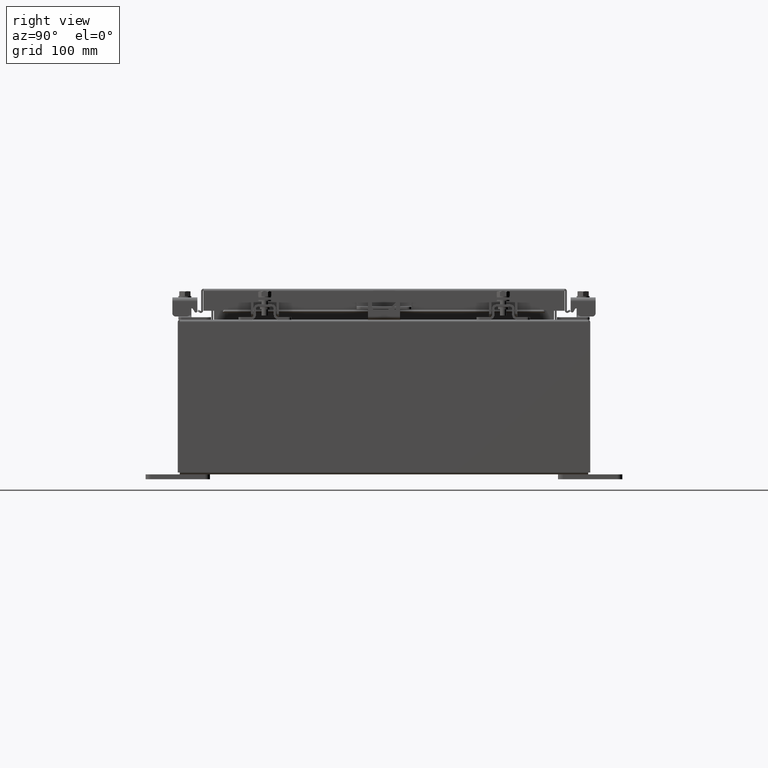
[diagram: clean part render]
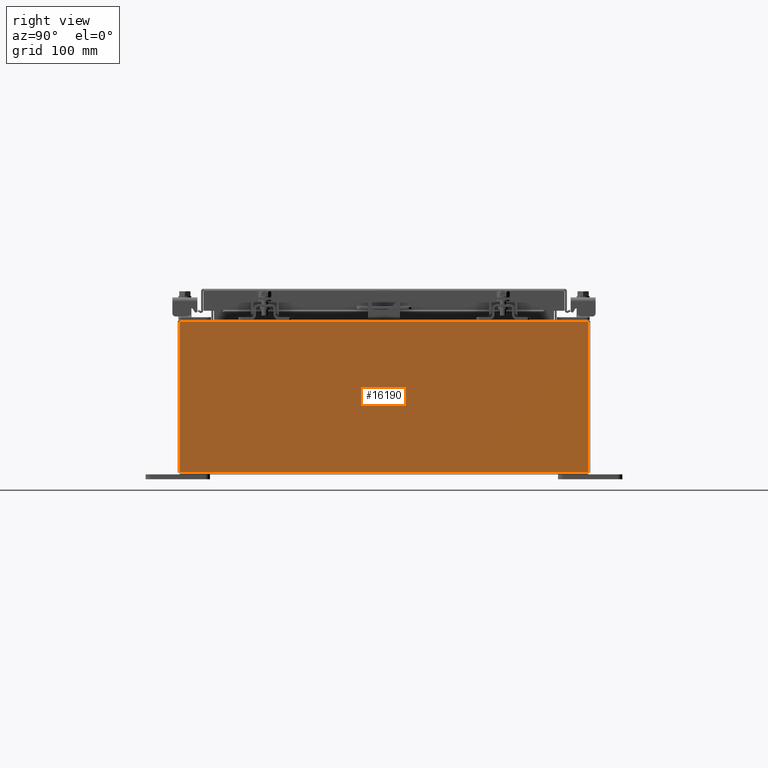
[diagram: same view with one face highlighted and labeled with its STEP entity id]
A machine part, right view. The second image highlights one B-rep face of the part: STEP entity #16190.
In plain terms, the highlighted planar face has unit normal (-1, 0, 0).
Its self-contained STEP definition (entity closure, byte-faithful):
#363 = AXIS2_PLACEMENT_3D ( 'NONE', #3461, #7522, #21646 ) ;
#975 = EDGE_CURVE ( 'NONE', #7709, #18837, #6839, .T. ) ;
#1475 = VECTOR ( 'NONE', #21698, 39.37007874015748100 ) ;
#3461 = CARTESIAN_POINT ( 'NONE',  ( 10.00000000000000000, 0.0000000000000000000, -3.345627304943080600E-014 ) ) ;
#4670 = DIRECTION ( 'NONE',  ( -3.319545939341922800E-015, 0.0000000000000000000, -1.000000000000000000 ) ) ;
#5377 = CARTESIAN_POINT ( 'NONE',  ( 10.00000000000002000, -7.925300000000000000, 5.837600000000001000 ) ) ;
#6839 = LINE ( 'NONE', #13391, #1475 ) ;
#7522 = DIRECTION ( 'NONE',  ( -1.000000000000000000, 0.0000000000000000000, 3.319545939341922000E-015 ) ) ;
#7592 = VECTOR ( 'NONE', #4670, 39.37007874015748100 ) ;
#7709 = VERTEX_POINT ( 'NONE', #18292 ) ;
#8293 = CARTESIAN_POINT ( 'NONE',  ( 10.00000000000000000, -7.925300000000000000, 0.01299999999999986400 ) ) ;
#8320 = DIRECTION ( 'NONE',  ( -0.0000000000000000000, -1.000000000000000000, -0.0000000000000000000 ) ) ;
#9433 = PLANE ( 'NONE',  #363 ) ;
#9997 = VECTOR ( 'NONE', #8320, 39.37007874015748100 ) ;
#10050 = CARTESIAN_POINT ( 'NONE',  ( 10.00000000000000000, -7.925300000000000000, 0.01299999999999985900 ) ) ;
#11296 = FACE_OUTER_BOUND ( 'NONE', #15589, .T. ) ;
#11633 = EDGE_CURVE ( 'NONE', #18837, #21699, #14733, .T. ) ;
#12249 = VECTOR ( 'NONE', #20415, 39.37007874015748100 ) ;
#12313 = LINE ( 'NONE', #12640, #7592 ) ;
#12640 = CARTESIAN_POINT ( 'NONE',  ( 10.00000000000000000, -7.925300000000000000, -3.345627304943080600E-014 ) ) ;
#13391 = CARTESIAN_POINT ( 'NONE',  ( 10.00000000000000000, 7.925300000000000000, -3.345627304943080600E-014 ) ) ;
#14733 = LINE ( 'NONE', #18469, #9997 ) ;
#14913 = EDGE_CURVE ( 'NONE', #21699, #19537, #12313, .T. ) ;
#15589 = EDGE_LOOP ( 'NONE', ( #20016, #24814, #17217, #22231 ) ) ;
#16190 = ADVANCED_FACE ( 'NONE', ( #11296 ), #9433, .F. ) ;
#16454 = EDGE_CURVE ( 'NONE', #7709, #19537, #21743, .T. ) ;
#17217 = ORIENTED_EDGE ( 'NONE', *, *, #16454, .F. ) ;
#18292 = CARTESIAN_POINT ( 'NONE',  ( 10.00000000000000000, 7.925300000000000000, 0.01299999999999986400 ) ) ;
#18469 = CARTESIAN_POINT ( 'NONE',  ( 10.00000000000002000, 7.925300000000000000, 5.837600000000001000 ) ) ;
#18837 = VERTEX_POINT ( 'NONE', #21620 ) ;
#19537 = VERTEX_POINT ( 'NONE', #10050 ) ;
#20016 = ORIENTED_EDGE ( 'NONE', *, *, #11633, .T. ) ;
#20415 = DIRECTION ( 'NONE',  ( -0.0000000000000000000, -1.000000000000000000, -0.0000000000000000000 ) ) ;
#21620 = CARTESIAN_POINT ( 'NONE',  ( 10.00000000000002000, 7.925300000000000000, 5.837600000000001000 ) ) ;
#21646 = DIRECTION ( 'NONE',  ( 3.319545939341922000E-015, 0.0000000000000000000, 1.000000000000000000 ) ) ;
#21698 = DIRECTION ( 'NONE',  ( 3.319545939341922800E-015, 0.0000000000000000000, 1.000000000000000000 ) ) ;
#21699 = VERTEX_POINT ( 'NONE', #5377 ) ;
#21743 = LINE ( 'NONE', #8293, #12249 ) ;
#22231 = ORIENTED_EDGE ( 'NONE', *, *, #975, .T. ) ;
#24814 = ORIENTED_EDGE ( 'NONE', *, *, #14913, .T. ) ;